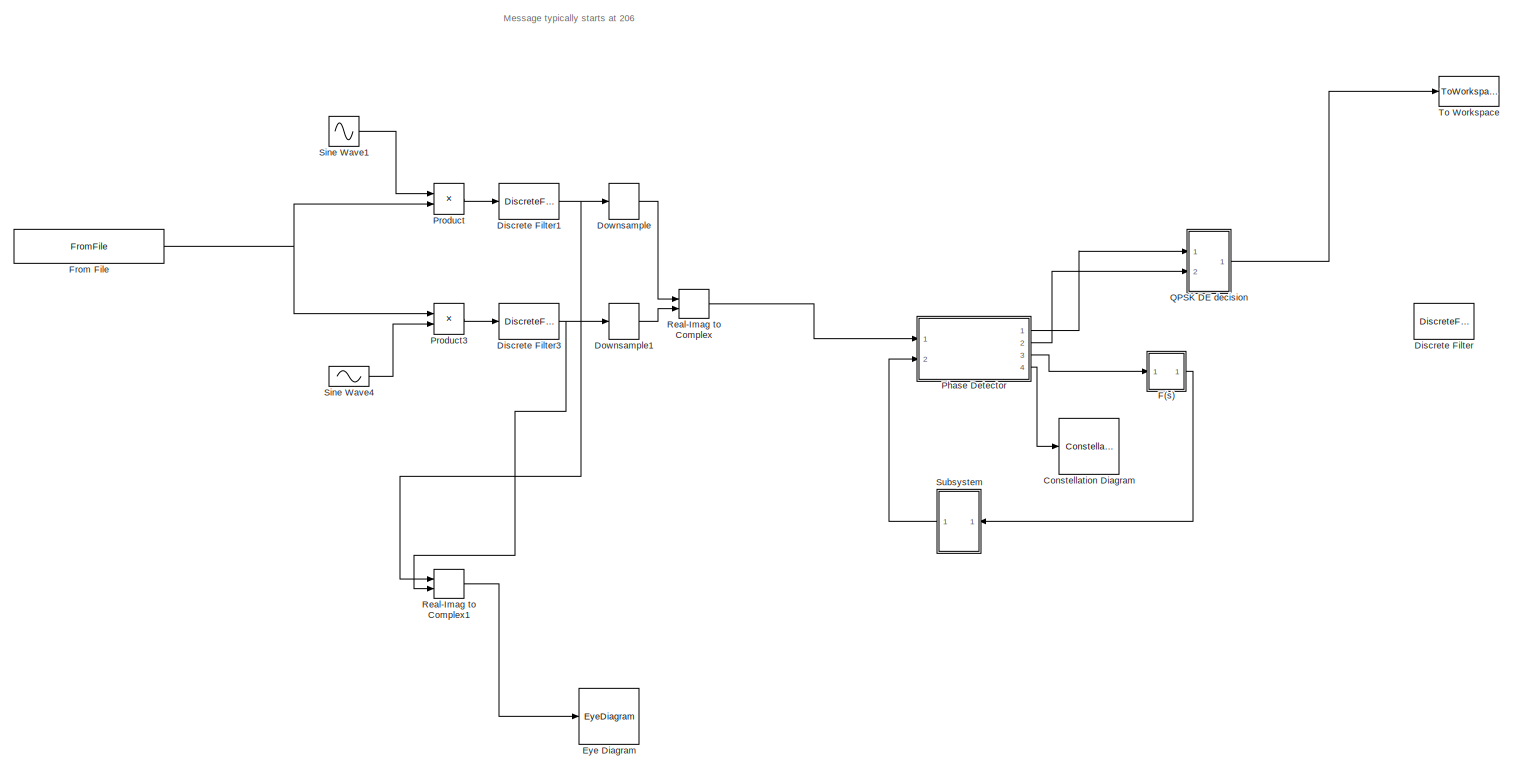
[diagram: root canvas - part 1/1, most of the canvas]
MODEL slx_7aa2099068b5
KIND model
CONFIG AbsTol = auto
CONFIG EnableMultiTasking = on
CONFIG FixedStep = auto
CONFIG MaxStep = auto
CONFIG MinStep = auto
CONFIG RelTol = 1e-3
CONFIG SampleTimeConstraint = Unconstrained
CONFIG Solver = VariableStepAuto
CONFIG SolverName = VariableStepAuto
CONFIG StartTime = 0.0
CONFIG StopTime = (12+8+175)*8*2-1\n
BLOCK [ConstellationDiagram] Constellation Diagram
  Ports = [1]
  ScopeSpecificationString = comm.scopes.ConstellationDiagramBlockCfg('CurrentConfiguration', extmgr.ConfigurationSet(extmgr.Configuration('Core','General UI',true),extmgr.Configuration('Core','Source UI',true),extmgr.Configuration('Sources','WiredSimulink',true),extmgr.Configuration('Sources','File',false),extmgr.Configuration('Sources','SimulinkEvent',false),extmgr.Configuration('Sources','SPTool',false),extmgr.Configuratio...<+2196ch>
BLOCK [DiscreteFilter] Discrete Filter
  Commented = on
  Denominator = [1 -1]
  InputPortMap = u0
  Numerator = [(K1+K2) -K1]
  Ports = [1, 1]
BLOCK [DiscreteFilter] Discrete Filter1
  Denominator = [1]
  InputPortMap = u0
  Numerator = rcosine(1,8,'fir/sqrt',0.5,6)
  Ports = [1, 1]
BLOCK [DiscreteFilter] Discrete Filter3
  Denominator = [1]
  InputPortMap = u0
  Numerator = rcosine(1,8,'fir/sqrt',0.5,6)
  Ports = [1, 1]
BLOCK [DownSample] Downsample
  InputProcessing = Inherited (this choice will be removed - see release notes)
  N = 8
  RateOptions = Allow multirate processing
BLOCK [DownSample] Downsample1
  InputProcessing = Inherited (this choice will be removed - see release notes)
  N = 8
  RateOptions = Allow multirate processing
BLOCK [EyeDiagram] Eye Diagram
  Ports = [1]
  ScopeSpecificationString = comm.scopes.EyeDiagramBlockCfg('CurrentConfiguration', extmgr.ConfigurationSet(extmgr.Configuration('Core','General UI',true),extmgr.Configuration('Core','Source UI',true),extmgr.Configuration('Sources','WiredSimulink',true),extmgr.Configuration('Sources','SimulinkEvent',false),extmgr.Configuration('Sources','SPTool',false),extmgr.Configuration('Sources','File',false),extmgr.Configuration('Sources...<+1879ch>
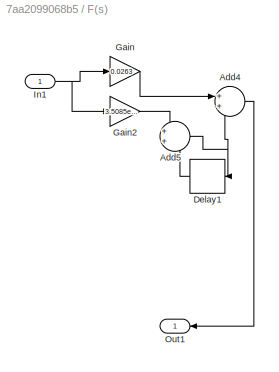
BLOCK [SubSystem] F(s)
  Ports = [1, 1]
  RequestExecContextInheritance = off
  Variant = off
BLOCK [Sum] F(s)/Add4
  IconShape = round
  InputSameDT = off
  OutDataTypeStr = Inherit: Inherit via internal rule
  Ports = [2, 1]
  SaturateOnIntegerOverflow = off
BLOCK [Sum] F(s)/Add5
  IconShape = round
  InputSameDT = off
  OutDataTypeStr = Inherit: Inherit via internal rule
  Ports = [2, 1]
  SaturateOnIntegerOverflow = off
BLOCK [Delay] F(s)/Delay1
  DelayLength = 1
  InputPortMap = u0
  Ports = [1, 1]
BLOCK [Gain] F(s)/Gain
  Gain = 0.0263
  OutDataTypeStr = Inherit: Inherit via internal rule
  ParamDataTypeStr = Inherit: Inherit via internal rule
  SaturateOnIntegerOverflow = off
BLOCK [Gain] F(s)/Gain2
  Gain = 3.5085e-04
  OutDataTypeStr = Inherit: Inherit via internal rule
  ParamDataTypeStr = Inherit: Inherit via internal rule
  SaturateOnIntegerOverflow = off
BLOCK [Inport] F(s)/In1
  IconDisplay = Port number
BLOCK [Outport] F(s)/Out1
  IconDisplay = Port number
BLOCK [FromFile] From File
  FileName = qpskcrdedata.mat
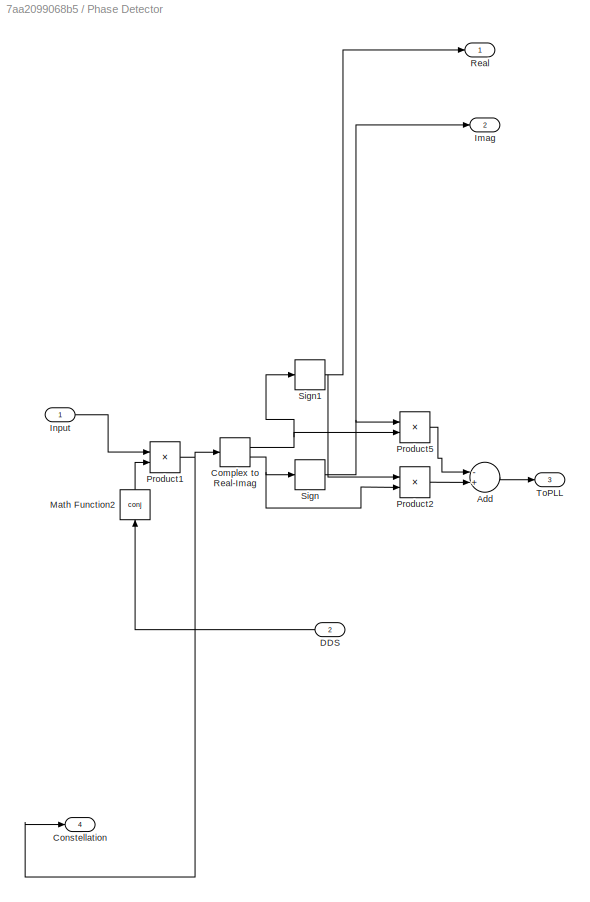
BLOCK [SubSystem] Phase Detector
  Ports = [2, 4]
  RequestExecContextInheritance = off
  Variant = off
BLOCK [Sum] Phase Detector/Add
  InputSameDT = off
  Inputs = -+
  OutDataTypeStr = Inherit: Inherit via internal rule
  Ports = [2, 1]
  SaturateOnIntegerOverflow = off
BLOCK [ComplexToRealImag] Phase Detector/Complex to Real-Imag
  Ports = [1, 2]
BLOCK [Outport] Phase Detector/Constellation
  IconDisplay = Port number
  Port = 4
BLOCK [Inport] Phase Detector/DDS
  IconDisplay = Port number
  Port = 2
BLOCK [Outport] Phase Detector/Imag
  IconDisplay = Port number
  Port = 2
BLOCK [Inport] Phase Detector/Input
  IconDisplay = Port number
BLOCK [Math] Phase Detector/Math Function2
  Operator = conj
  Ports = [1, 1]
BLOCK [Product] Phase Detector/Product1
  InputSameDT = off
  OutDataTypeStr = Inherit: Inherit via internal rule
  Ports = [2, 1]
  RndMeth = Floor
  SaturateOnIntegerOverflow = off
BLOCK [Product] Phase Detector/Product2
  InputSameDT = off
  OutDataTypeStr = Inherit: Inherit via internal rule
  Ports = [2, 1]
  RndMeth = Floor
  SaturateOnIntegerOverflow = off
BLOCK [Product] Phase Detector/Product5
  InputSameDT = off
  OutDataTypeStr = Inherit: Inherit via internal rule
  Ports = [2, 1]
  RndMeth = Floor
  SaturateOnIntegerOverflow = off
BLOCK [Outport] Phase Detector/Real
  IconDisplay = Port number
BLOCK [Signum] Phase Detector/Sign
BLOCK [Signum] Phase Detector/Sign1
BLOCK [Outport] Phase Detector/ToPLL
  IconDisplay = Port number
  Port = 3
BLOCK [Product] Product
  InputSameDT = off
  OutDataTypeStr = Inherit: Inherit via internal rule
  Ports = [2, 1]
  RndMeth = Floor
  SaturateOnIntegerOverflow = off
BLOCK [Product] Product3
  InputSameDT = off
  OutDataTypeStr = Inherit: Inherit via internal rule
  Ports = [2, 1]
  RndMeth = Floor
  SaturateOnIntegerOverflow = off
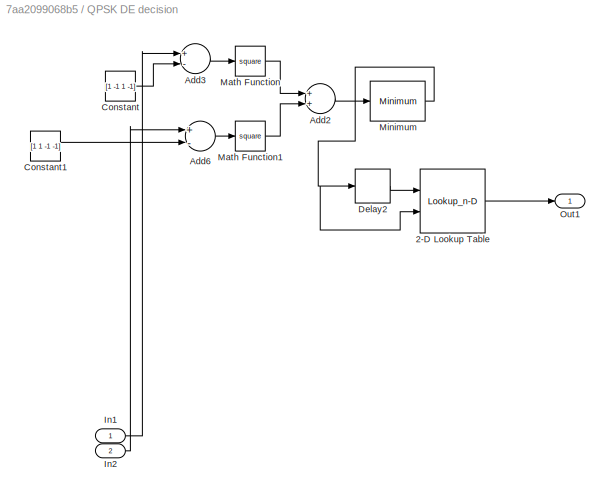
BLOCK [SubSystem] QPSK DE decision
  Ports = [2, 1]
  RequestExecContextInheritance = off
  Variant = off
BLOCK [Lookup_n-D] QPSK DE decision/2-D Lookup Table
  BreakpointsForDimension1 = [0:3]
  BreakpointsForDimension2 = [0:3]
  InternalRulePriority = Speed
  Ports = [2, 1]
  RndMeth = Simplest
  Table = [0 1 2 3; 2 0 3 1; 1 3 0 2;3 2 1 0]
BLOCK [Sum] QPSK DE decision/Add2
  InputSameDT = off
  OutDataTypeStr = Inherit: Inherit via internal rule
  Ports = [2, 1]
  SaturateOnIntegerOverflow = off
BLOCK [Sum] QPSK DE decision/Add3
  InputSameDT = off
  Inputs = +-
  OutDataTypeStr = Inherit: Inherit via internal rule
  Ports = [2, 1]
  SaturateOnIntegerOverflow = off
BLOCK [Sum] QPSK DE decision/Add6
  InputSameDT = off
  Inputs = +-
  OutDataTypeStr = Inherit: Inherit via internal rule
  Ports = [2, 1]
  SaturateOnIntegerOverflow = off
BLOCK [Constant] QPSK DE decision/Constant
  Value = [1 -1 1 -1]
BLOCK [Constant] QPSK DE decision/Constant1
  Value = [1 1 -1 -1]
BLOCK [Delay] QPSK DE decision/Delay2
  DelayLength = 1
  InputPortMap = u0
  Ports = [1, 1]
BLOCK [Inport] QPSK DE decision/In1
  IconDisplay = Port number
BLOCK [Inport] QPSK DE decision/In2
  IconDisplay = Port number
  Port = 2
BLOCK [Math] QPSK DE decision/Math Function
  Operator = square
  Ports = [1, 1]
BLOCK [Math] QPSK DE decision/Math Function1
  Operator = square
  Ports = [1, 1]
BLOCK [Reference] QPSK DE decision/Minimum  REF=dspstat3/Minimum
  Ports = [1, 1]
  SourceBlock = dspstat3/Minimum
  SourceType = Minimum
  UserDataPersistent = on
BLOCK [Outport] QPSK DE decision/Out1
  IconDisplay = Port number
BLOCK [RealImagToComplex] Real-Imag to Complex
  Ports = [2, 1]
BLOCK [RealImagToComplex] Real-Imag to Complex1
  Ports = [2, 1]
BLOCK [Sin] Sine Wave1
  Amplitude = sqrt(2)
  Frequency = .3*2*pi
  Phase = pi/2
  Ports = [0, 1]
  SampleTime = 1
BLOCK [Sin] Sine Wave4
  Amplitude = -sqrt(2)
  Frequency = .3*2*pi
  Ports = [0, 1]
  SampleTime = 1
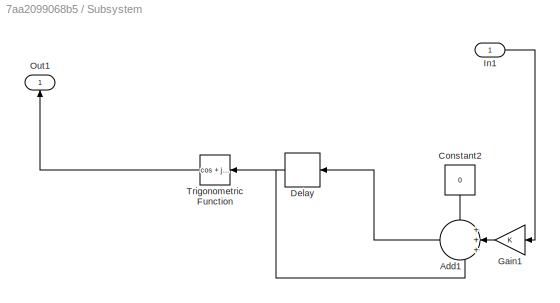
BLOCK [SubSystem] Subsystem
  Ports = [1, 1]
  RequestExecContextInheritance = off
  Variant = off
BLOCK [Sum] Subsystem/Add1
  IconShape = round
  InputSameDT = off
  Inputs = +++
  OutDataTypeStr = Inherit: Inherit via internal rule
  Ports = [3, 1]
  SaturateOnIntegerOverflow = off
BLOCK [Constant] Subsystem/Constant2
  Value = 0
BLOCK [Delay] Subsystem/Delay
  DelayLength = 1
  InputPortMap = u0
  Ports = [1, 1]
BLOCK [Gain] Subsystem/Gain1
  OutDataTypeStr = Inherit: Inherit via internal rule
  ParamDataTypeStr = Inherit: Inherit via internal rule
  SaturateOnIntegerOverflow = off
BLOCK [Inport] Subsystem/In1
  IconDisplay = Port number
BLOCK [Outport] Subsystem/Out1
  IconDisplay = Port number
BLOCK [Trigonometry] Subsystem/Trigonometric Function
  Operator = cos + jsin
  Ports = [1, 1]
BLOCK [ToWorkspace] To Workspace
  FixptAsFi = on
  MaxDataPoints = inf
  Ports = [1]
  SampleTime = -1
  Save2DSignal = 3-D array (concatenate along third dimension)
  VariableName = QPSKbitsDE
ANNOTATION (root): Message typically starts at 206
NET Discrete Filter1:1 -> Downsample:1, Real-Imag to Complex1:1
NET Discrete Filter3:1 -> Downsample1:1, Real-Imag to Complex1:2
LINE Downsample1:1 -> Real-Imag to Complex:2
LINE Downsample:1 -> Real-Imag to Complex:1
LINE F(s)/Add4:1 -> F(s)/Out1:1
NET F(s)/Add5:1 -> F(s)/Add4:2, F(s)/Delay1:1
LINE F(s)/Delay1:1 -> F(s)/Add5:2
LINE F(s)/Gain2:1 -> F(s)/Add5:1
LINE F(s)/Gain:1 -> F(s)/Add4:1
NET F(s)/In1:1 -> F(s)/Gain2:1, F(s)/Gain:1
LINE F(s):1 -> Subsystem:1
NET From File:1 -> Product3:1, Product:2
LINE Phase Detector/Add:1 -> Phase Detector/ToPLL:1
NET Phase Detector/Complex to Real-Imag:1 -> Phase Detector/Product5:2, Phase Detector/Sign1:1
NET Phase Detector/Complex to Real-Imag:2 -> Phase Detector/Product2:2, Phase Detector/Sign:1
LINE Phase Detector/DDS:1 -> Phase Detector/Math Function2:1
LINE Phase Detector/Input:1 -> Phase Detector/Product1:1
LINE Phase Detector/Math Function2:1 -> Phase Detector/Product1:2
NET Phase Detector/Product1:1 -> Phase Detector/Complex to Real-Imag:1, Phase Detector/Constellation:1
LINE Phase Detector/Product2:1 -> Phase Detector/Add:2
LINE Phase Detector/Product5:1 -> Phase Detector/Add:1
NET Phase Detector/Sign1:1 -> Phase Detector/Product2:1, Phase Detector/Real:1
NET Phase Detector/Sign:1 -> Phase Detector/Imag:1, Phase Detector/Product5:1
LINE Phase Detector:1 -> QPSK DE decision:1
LINE Phase Detector:2 -> QPSK DE decision:2
LINE Phase Detector:3 -> F(s):1
LINE Phase Detector:4 -> Constellation Diagram:1
LINE Product3:1 -> Discrete Filter3:1
LINE Product:1 -> Discrete Filter1:1
LINE QPSK DE decision/2-D Lookup Table:1 -> QPSK DE decision/Out1:1
LINE QPSK DE decision/Add2:1 -> QPSK DE decision/Minimum:1
LINE QPSK DE decision/Add3:1 -> QPSK DE decision/Math Function:1
LINE QPSK DE decision/Add6:1 -> QPSK DE decision/Math Function1:1
LINE QPSK DE decision/Constant1:1 -> QPSK DE decision/Add6:2
LINE QPSK DE decision/Constant:1 -> QPSK DE decision/Add3:2
LINE QPSK DE decision/Delay2:1 -> QPSK DE decision/2-D Lookup Table:1
LINE QPSK DE decision/In1:1 -> QPSK DE decision/Add3:1
LINE QPSK DE decision/In2:1 -> QPSK DE decision/Add6:1
LINE QPSK DE decision/Math Function1:1 -> QPSK DE decision/Add2:2
LINE QPSK DE decision/Math Function:1 -> QPSK DE decision/Add2:1
NET QPSK DE decision/Minimum:1 -> QPSK DE decision/2-D Lookup Table:2, QPSK DE decision/Delay2:1
LINE QPSK DE decision:1 -> To Workspace:1
LINE Real-Imag to Complex1:1 -> Eye Diagram:1
LINE Real-Imag to Complex:1 -> Phase Detector:1
LINE Sine Wave1:1 -> Product:1
LINE Sine Wave4:1 -> Product3:2
LINE Subsystem/Add1:1 -> Subsystem/Delay:1
LINE Subsystem/Constant2:1 -> Subsystem/Add1:1
NET Subsystem/Delay:1 -> Subsystem/Add1:3, Subsystem/Trigonometric Function:1
LINE Subsystem/Gain1:1 -> Subsystem/Add1:2
LINE Subsystem/In1:1 -> Subsystem/Gain1:1
LINE Subsystem/Trigonometric Function:1 -> Subsystem/Out1:1
LINE Subsystem:1 -> Phase Detector:2
note: NET lines group one-source signal fan-out (src -> all destinations, sorted); 1:1 wires keep LINE
